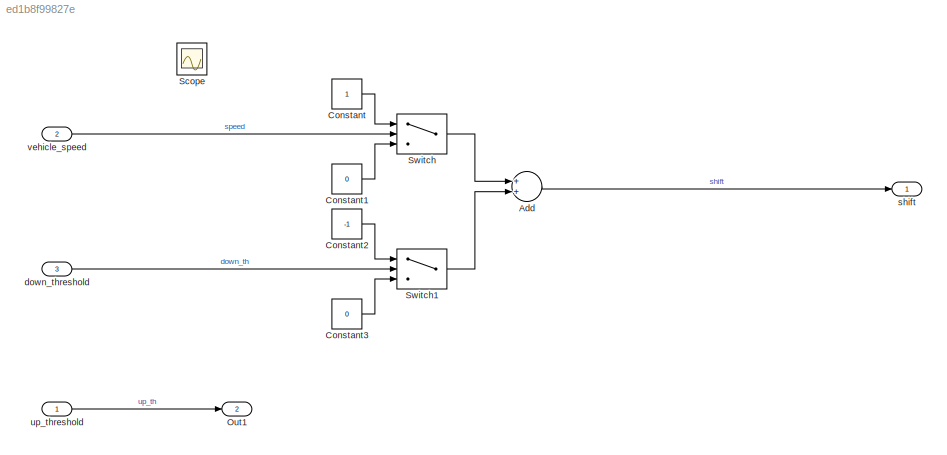
MODEL slx_ed1b8f99827e
KIND model
CONFIG AbsTol = auto
CONFIG EnableMultiTasking = on
CONFIG FixedStep = 0.05
CONFIG MaxStep = auto
CONFIG MinStep = auto
CONFIG RelTol = 1e-3
CONFIG SampleTimeConstraint = Unconstrained
CONFIG Solver = FixedStepAuto
CONFIG SolverName = FixedStepAuto
CONFIG StartTime = 0.0
CONFIG StopTime = 3.0
BLOCK [Sum] Add
  InputSameDT = off
  OutDataTypeStr = Inherit: Inherit via internal rule
  Ports = [2, 1]
  SaturateOnIntegerOverflow = off
BLOCK [Constant] Constant
BLOCK [Constant] Constant1
  Value = 0
BLOCK [Constant] Constant2
  Value = -1
BLOCK [Constant] Constant3
  Value = 0
BLOCK [Outport] Out1
  IconDisplay = Port number
  Port = 2
BLOCK [Scope] Scope
  Floating = off
  IOType = viewer
  NumInputPorts = 1
  Ports = []
  ScopeSpecificationString = Simulink.scopes.TimeScopeBlockCfg('CurrentConfiguration', extmgr.ConfigurationSet(extmgr.Configuration('Core','General UI',true),extmgr.Configuration('Core','Source UI',true),extmgr.Configuration('Sources','WiredSimulink',true),extmgr.Configuration('Visuals','Time Domain',true,'SerializedDisplays',{struct('MinYLimReal','-5.81979','MaxYLimReal','52.37813','YLabelReal','','MinYLimMag','0.00000','Max...<+9266ch>
BLOCK [Switch] Switch
  Criteria = u2 > Threshold
  InputSameDT = off
  SaturateOnIntegerOverflow = off
  Threshold = up_threshold
BLOCK [Switch] Switch1
  Criteria = u2 > Threshold
  InputSameDT = off
  SaturateOnIntegerOverflow = off
  Threshold = vehicle_speed
BLOCK [Inport] down_threshold
  IconDisplay = Port number
  OutDataTypeStr = double
  Port = 3
BLOCK [Outport] shift
  IconDisplay = Port number
BLOCK [Inport] up_threshold
  IconDisplay = Port number
  OutDataTypeStr = double
BLOCK [Inport] vehicle_speed
  IconDisplay = Port number
  OutDataTypeStr = double
  Port = 2
LINE Add:1 -> shift:1
LINE Constant1:1 -> Switch:3
LINE Constant2:1 -> Switch1:1
LINE Constant3:1 -> Switch1:3
LINE Constant:1 -> Switch:1
LINE Switch1:1 -> Add:2
LINE Switch:1 -> Add:1
LINE down_threshold:1 -> Switch1:2
LINE up_threshold:1 -> Out1:1
LINE vehicle_speed:1 -> Switch:2
